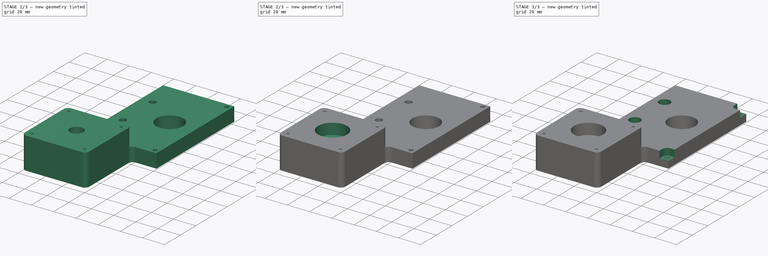
[diagram: build sequence overview — one tinted view per stage of 3, left to right]
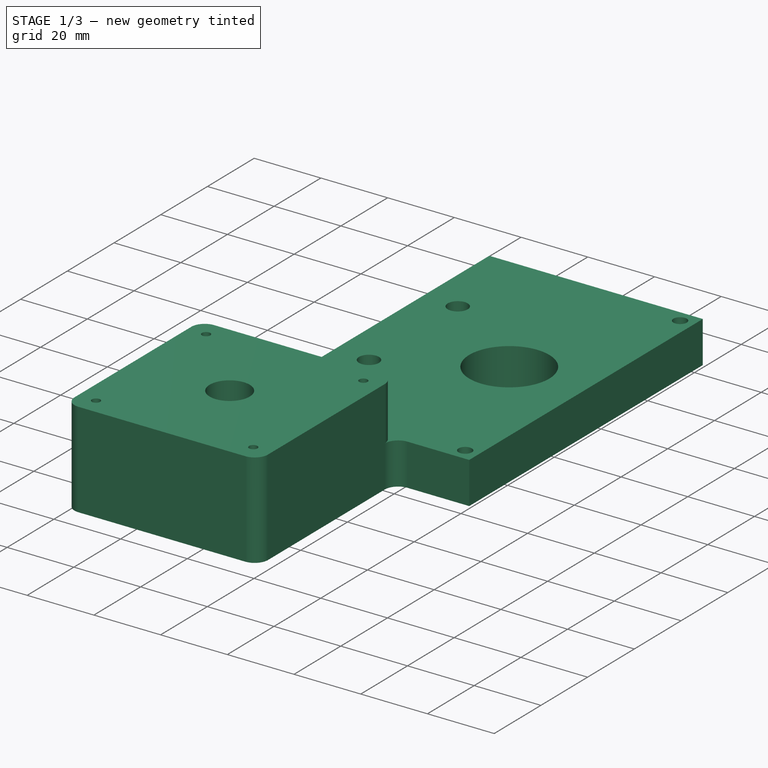
[diagram: stage 1 of 3 — iso view after this stage's code; geometry added in this stage tinted green]
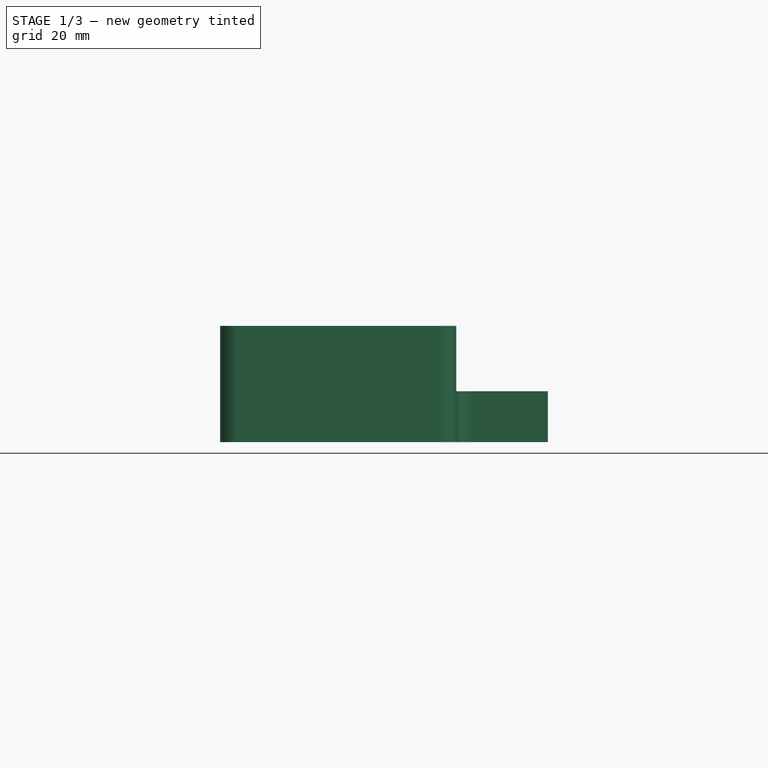
[diagram: stage 1 of 3 — front view after this stage's code; geometry added in this stage tinted green]
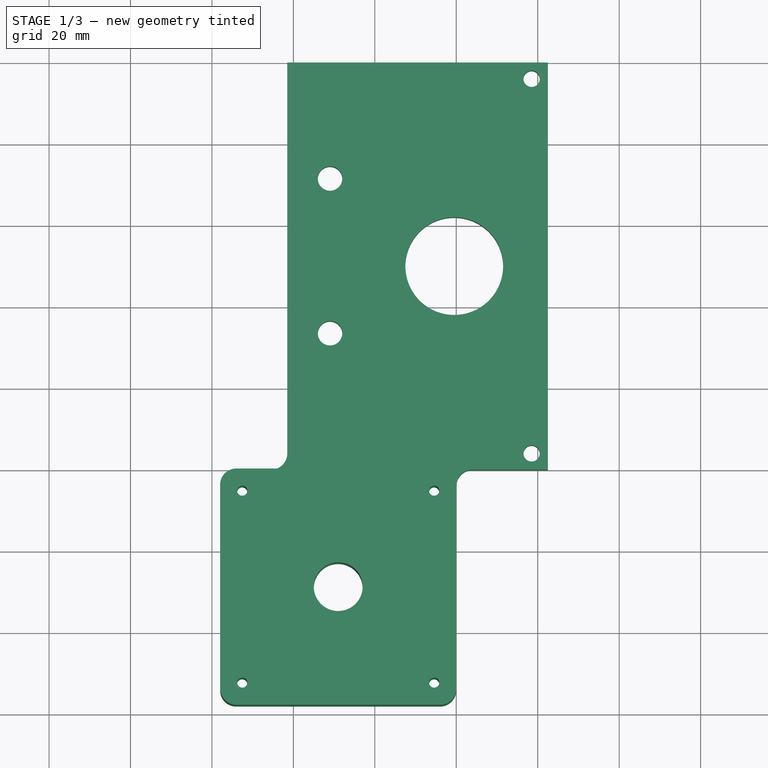
[diagram: stage 1 of 3 — top view after this stage's code; geometry added in this stage tinted green]
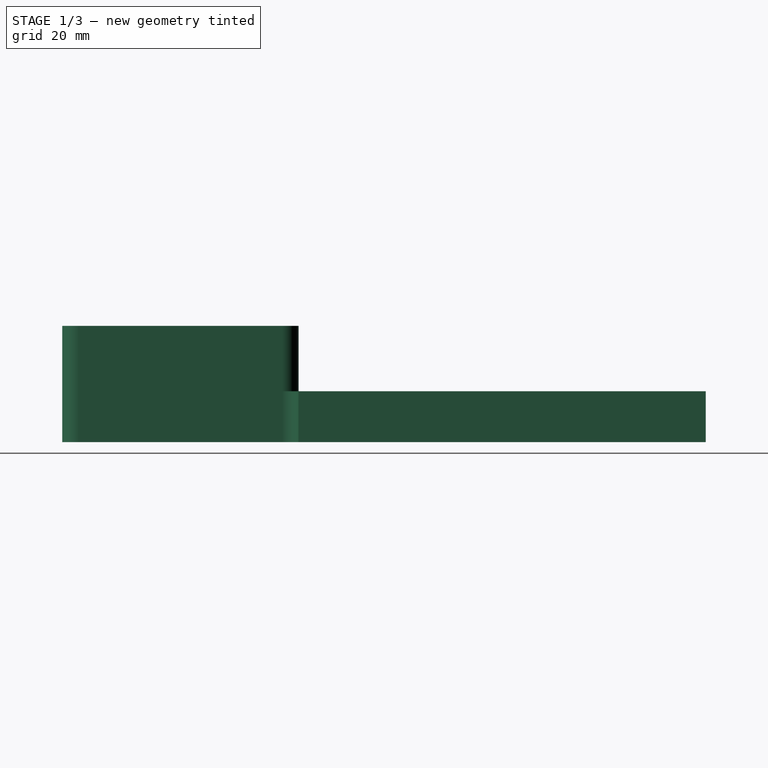
[diagram: stage 1 of 3 — right view after this stage's code; geometry added in this stage tinted green]
FCSTD DOCUMENT  (FreeCAD 0.16R6703 (Git))
Label: Z-Axis-SM-mount-alt
License: CreativeCommons Attribution-ShareAlike
LicenseURL: http://creativecommons.org/licenses/by-sa/4.0/
objects: Sketcher::SketchObject×6, PartDesign::Pocket×5, PartDesign::Pad×1
note: 18 computed .brp shape members not serialized (recipe doc carries the construction recipe); baked Part::Feature solids carry a one-line shape summary decoded from their .brp

FEATURE [Sketcher::SketchObject] Sketch002  label="Base outline"
  Placement = pos=(0,0,0) rot=(1,0,0;3.14159rad)
  sketch-geometry (25):
    g0: Circle CenterX=-29 CenterY=129 CenterZ=0 NormalX=0 NormalY=0 NormalZ=1 Radius=6
    g1: Circle CenterX=-31 CenterY=66.5 CenterZ=0 NormalX=0 NormalY=0 NormalZ=1 Radius=3
    g2: Circle CenterX=-31 CenterY=28.5 CenterZ=0 NormalX=0 NormalY=0 NormalZ=1 Radius=3
    g3: LineSegment [constr] StartX=-29 StartY=158 StartZ=0 EndX=-29 EndY=0 EndZ=0
    g4: Circle CenterX=-5.43 CenterY=152.57 CenterZ=0 NormalX=0 NormalY=0 NormalZ=1 Radius=1.25
    g5: Circle CenterX=-52.57 CenterY=152.57 CenterZ=0 NormalX=0 NormalY=0 NormalZ=1 Radius=1.25
    g6: Circle CenterX=-52.57 CenterY=105.43 CenterZ=0 NormalX=0 NormalY=0 NormalZ=1 Radius=1.25
    g7: Circle CenterX=-5.43 CenterY=105.43 CenterZ=0 NormalX=0 NormalY=0 NormalZ=1 Radius=1.25
    g8: LineSegment [constr] StartX=-58 StartY=129 StartZ=0 EndX=0 EndY=129 EndZ=0
    g9: LineSegment StartX=22.5 StartY=0 StartZ=0 EndX=-41.5 EndY=0 EndZ=0
    g10: LineSegment StartX=-41.5 StartY=0 StartZ=0 EndX=-41.5 EndY=96 EndZ=0
    g11: LineSegment StartX=22.5 StartY=100 StartZ=0 EndX=22.5 EndY=0 EndZ=0
    g12: ArcOfCircle CenterX=-54 CenterY=104 CenterZ=0 NormalX=0 NormalY=0 NormalZ=1 Radius=4 StartAngle=3.14159 EndAngle=4.71239
    g13: ArcOfCircle CenterX=-54 CenterY=154 CenterZ=0 NormalX=0 NormalY=0 NormalZ=1 Radius=4 StartAngle=1.5708 EndAngle=3.14159
    g14: LineSegment StartX=-58 StartY=154 StartZ=0 EndX=-58 EndY=104 EndZ=0
    g15: LineSegment StartX=-54 StartY=158 StartZ=0 EndX=-4 EndY=158 EndZ=0
    g16: ArcOfCircle CenterX=-4 CenterY=154 CenterZ=0 NormalX=0 NormalY=0 NormalZ=1 Radius=4 StartAngle=6.28319 EndAngle=7.85398
    g17: LineSegment StartX=0 StartY=154 StartZ=0 EndX=0 EndY=104 EndZ=0
    g18: ArcOfCircle CenterX=-45.5 CenterY=96 CenterZ=0 NormalX=0 NormalY=0 NormalZ=1 Radius=4 StartAngle=3.7332e-08 EndAngle=1.5708
    g19: LineSegment StartX=-54 StartY=100 StartZ=0 EndX=-45.5 EndY=100 EndZ=0
    g20: LineSegment StartX=22.5 StartY=100 StartZ=0 EndX=4 EndY=100 EndZ=0
    g21: ArcOfCircle CenterX=4 CenterY=104 CenterZ=0 NormalX=0 NormalY=0 NormalZ=1 Radius=4 StartAngle=3.14159 EndAngle=4.71239
    g22: Circle CenterX=18.5 CenterY=96 CenterZ=0 NormalX=0 NormalY=0 NormalZ=1 Radius=2
    g23: Circle CenterX=18.5 CenterY=4 CenterZ=0 NormalX=0 NormalY=0 NormalZ=1 Radius=2
    g24: Circle CenterX=-0.5 CenterY=50 CenterZ=0 NormalX=0 NormalY=0 NormalZ=1 Radius=12
  constraints (78):
    c: DistanceY(g-1,g0) = 129
    c: Radius(g0) = 6
    c: Vertical(g3)
    c: PointOnObject(g3,g-1)
    c: DistanceY(g3) = -158
    c: DistanceX(g-1,g3) = -29
    c: PointOnObject(g0,g3)
    c: Equal(g1,g2)
    c: Radius(g1) = 3
    c: DistanceY(g2,g1) = 38
    c: DistanceY(g2) = 28.5
    c: Symmetric(g4,g5,g3)
    c: Symmetric(g7,g6,g3)
    c: Equal(g4,g5)
    c: Equal(g5,g6)
    c: Equal(g6,g7)
    c: Radius(g5) = 1.25
    c: PointOnObject(g8,g-2)
    c: PointOnObject(g0,g8)
    c: DistanceX(g8) = 58
    c: Symmetric(g5,g6,g8)
    c: DistanceX(g6,g7) = 47.14
    c: DistanceY(g7,g4) = 47.14
    c: Coincident(g9,g10)
    c: Coincident(g9,g11)
    c: Vertical(g11)
    c: Vertical(g10)
    c: Horizontal(g9)
    c: Vertical(g14)
    c: Coincident(g14,g13)
    c: Tangent(g14,g13)
    c: Coincident(g12,g14)
    c: Tangent(g12,g14)
    c: Coincident(g13,g15)
    c: Tangent(g13,g15)
    c: Equal(g12,g13)
    c: Radius(g12) = 4
    c: Coincident(g15,g16)
    c: Tangent(g15,g16)
    c: Vertical(g17)
    c: Coincident(g17,g16)
    c: Tangent(g16,g17)
    c: PointOnObject(g8,g17)
    c: PointOnObject(g3,g15)
    c: Equal(g13,g16)
    c: PointOnObject(g8,g14)
    c: Symmetric(g12,g13,g8)
    c: Coincident(g10,g18)
    c: Tangent(g18,g10)
    c: Horizontal(g19)
    c: Coincident(g19,g18)
    c: Coincident(g19,g12)
    c: Tangent(g19,g18)
    c: Tangent(g12,g19)
    c: Equal(g12,g18)
    c: Horizontal(g20)
    c: DistanceX(g9,g3) = 12.5
    c: DistanceX(g9,g9) = 64
    c: Horizontal(g15)
    c: Coincident(g21,g17)
    c: Coincident(g21,g20)
    c: Tangent(g21,g20)
    c: Tangent(g21,g17)
    c: Equal(g14,g17)
    c: PointOnObject(g9,g-1)
    c: Radius(g21) = 4
    c: Coincident(g20,g11)
    c: Equal(g22,g23)
    c: DistanceY(g22,g11) = 4
    c: DistanceY(g9,g23) = 4
    c: Radius(g22) = 2
    c: DistanceX(g23,g9) = 4
    c: DistanceX(g22,g11) = 4
    c: DistanceX(g24,g9) = 23
    c: DistanceY(g-1,g24) = 50
    c: Radius(g24) = 12
    c: DistanceX(g10,g1) = 10.5
    c: DistanceX(g10,g2) = 10.5
FEATURE [PartDesign::Pad] Pad
  Length = 28.575
  Length2 = 100
  Placement = pos=(0,0,0) rot=(1,0,0;3.14159rad)
  Sketch = -> Sketch002
  Type = 0
FEATURE [Sketcher::SketchObject] Sketch004  label="Sketch001"
  Support = -> Pad [Face24]
  sketch-geometry (6):
    g0: LineSegment StartX=-45 StartY=0 StartZ=0 EndX=24 EndY=0 EndZ=0
    g1: LineSegment StartX=24 StartY=0 StartZ=0 EndX=24 EndY=-104 EndZ=0
    g2: LineSegment StartX=24 StartY=-104 StartZ=0 EndX=-5.1e-11 EndY=-104 EndZ=0
    g3: LineSegment StartX=-3.99998 StartY=-100 StartZ=0 EndX=-45 EndY=-100 EndZ=0
    g4: LineSegment StartX=-45 StartY=-100 StartZ=0 EndX=-45 EndY=0 EndZ=0
    g5: ArcOfCircle CenterX=-4 CenterY=-104 CenterZ=0 NormalX=0 NormalY=0 NormalZ=1 Radius=4 StartAngle=6.28318 EndAngle=7.85398
  constraints (19):
    c: Coincident(g0,g1)
    c: Coincident(g1,g2)
    c: Coincident(g3,g4)
    c: Coincident(g0,g4)
    c: Horizontal(g0)
    c: Vertical(g4)
    c: Vertical(g1)
    c: Horizontal(g2)
    c: Horizontal(g3)
    c: DistanceY(g3,g-1) = 100
    c: DistanceX(g0,g-1) = 45
    c: DistanceX(g-1,g0) = 24
    c: PointOnObject(g0,g-1)
    c: Coincident(g3,g5)
    c: Radius(g5) = 4
    c: Tangent(g3,g5)
    c: Coincident(g2,g5)
    c: PointOnObject(g2,g-2)
    c: Angle(g5) = 1.5708
FEATURE [PartDesign::Pocket] Pocket
  Length = 16.075
  Placement = pos=(0,0,0) rot=(1,0,0;3.14159rad)
  Sketch = -> Sketch004
  Type = 0
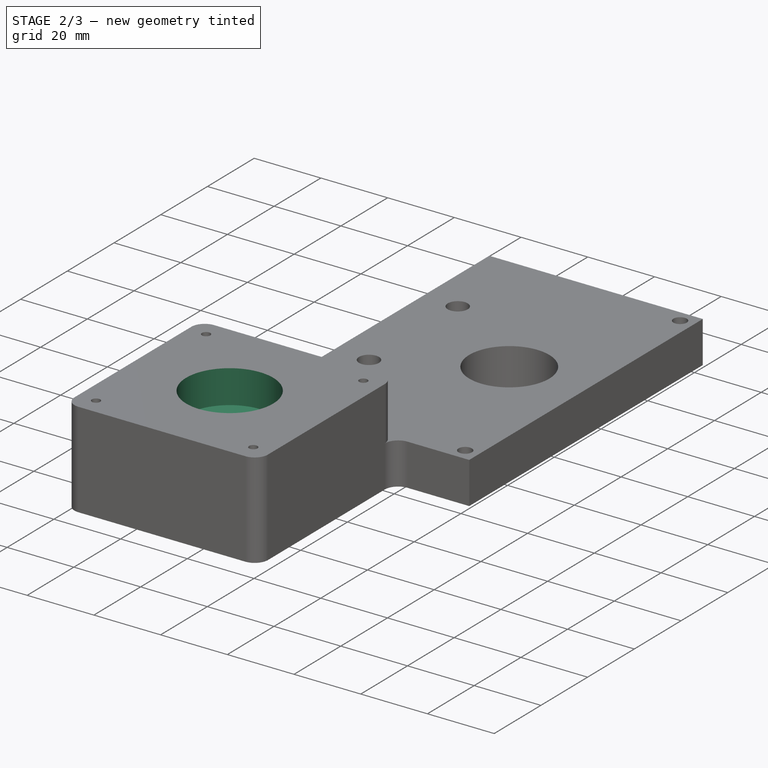
[diagram: stage 2 of 3 — iso view after this stage's code; geometry added in this stage tinted green]
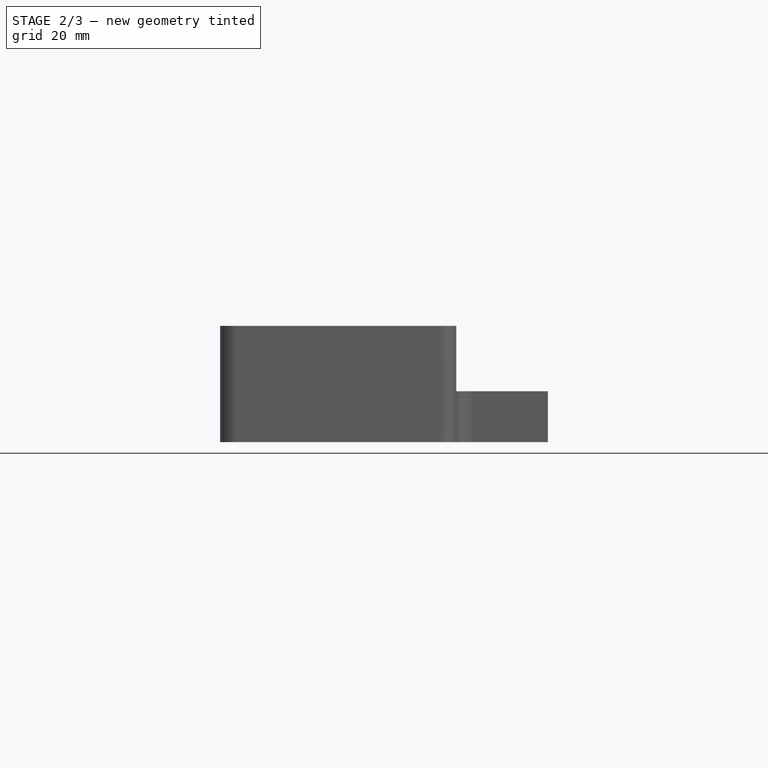
[diagram: stage 2 of 3 — front view after this stage's code; geometry added in this stage tinted green]
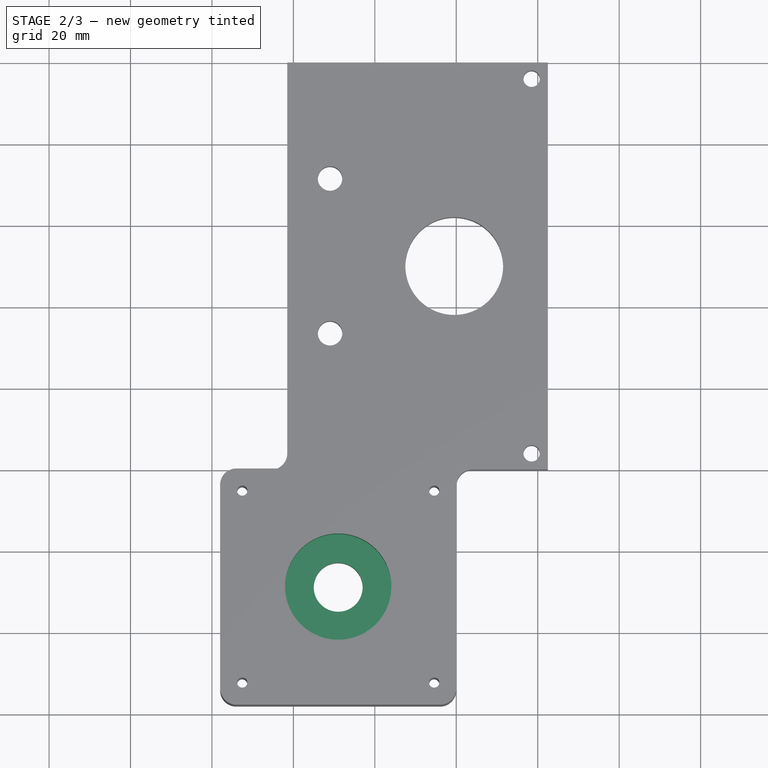
[diagram: stage 2 of 3 — top view after this stage's code; geometry added in this stage tinted green]
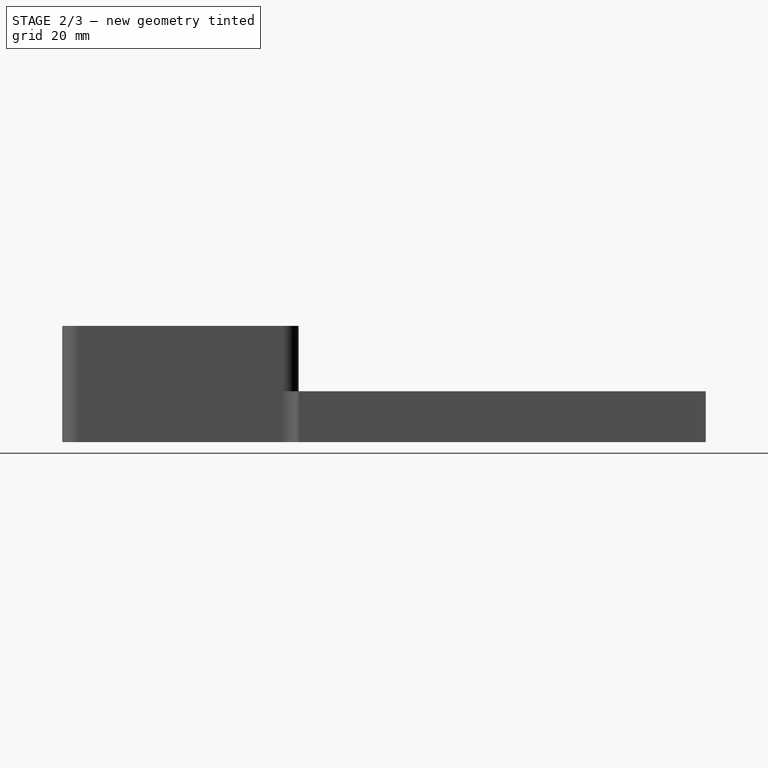
[diagram: stage 2 of 3 — right view after this stage's code; geometry added in this stage tinted green]
FEATURE [Sketcher::SketchObject] Sketch  label="Sketch002"
  Placement = pos=(0,0,-28.575) rot=(1,0,0;3.14159rad)
  Support = -> Pocket [Face4]
  sketch-geometry (1):
    g0: Circle CenterX=-29 CenterY=129 CenterZ=0 NormalX=0 NormalY=0 NormalZ=1 Radius=13.05
  constraints (3):
    c: Radius(g0) = 13.05
    c: DistanceY(g-1,g0) = 129
    c: DistanceX(g-1,g0) = -29
FEATURE [PartDesign::Pocket] Pocket001
  Length = 10
  Placement = pos=(0,0,0) rot=(1,0,0;3.14159rad)
  Sketch = -> Sketch
  Type = 0
FEATURE [Sketcher::SketchObject] Sketch005  label="Sketch003"
  Support = -> Pocket001 [Face29]
  sketch-geometry (1):
    g0: Circle CenterX=-29 CenterY=-129 CenterZ=0 NormalX=0 NormalY=0 NormalZ=1 Radius=13.05
  constraints (3):
    c: Radius(g0) = 13.05
    c: DistanceY(g0,g-1) = 129
    c: DistanceX(g0,g-1) = 29
FEATURE [PartDesign::Pocket] Pocket002
  Length = 10
  Placement = pos=(0,0,0) rot=(1,0,0;3.14159rad)
  Sketch = -> Sketch005
  Type = 0
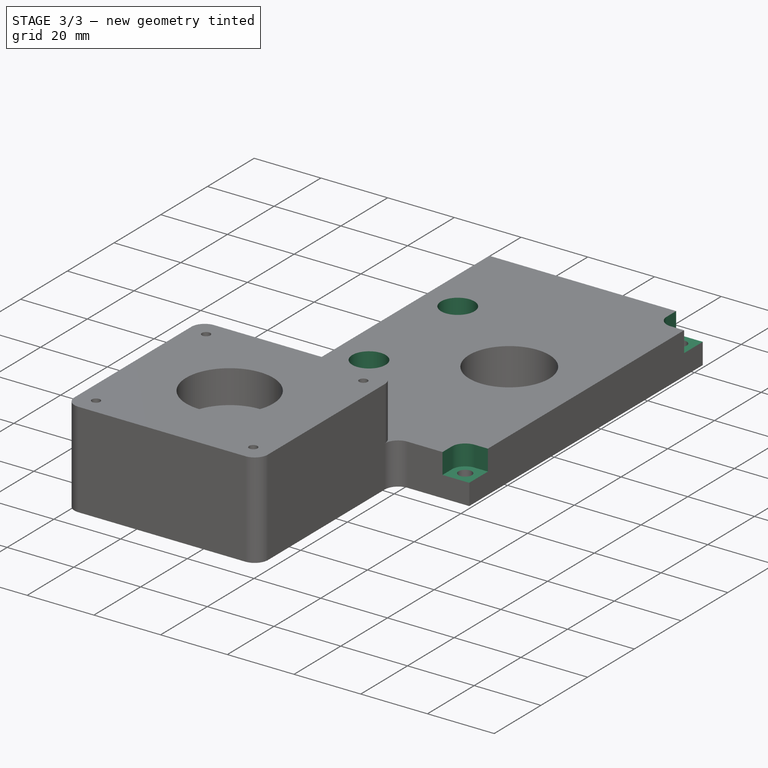
[diagram: stage 3 of 3 — iso view after this stage's code; geometry added in this stage tinted green]
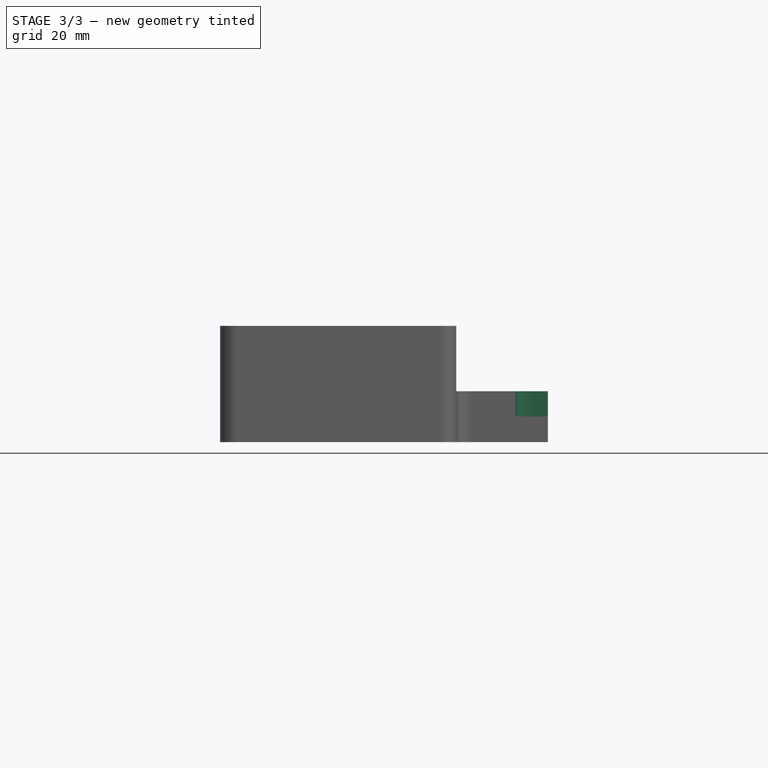
[diagram: stage 3 of 3 — front view after this stage's code; geometry added in this stage tinted green]
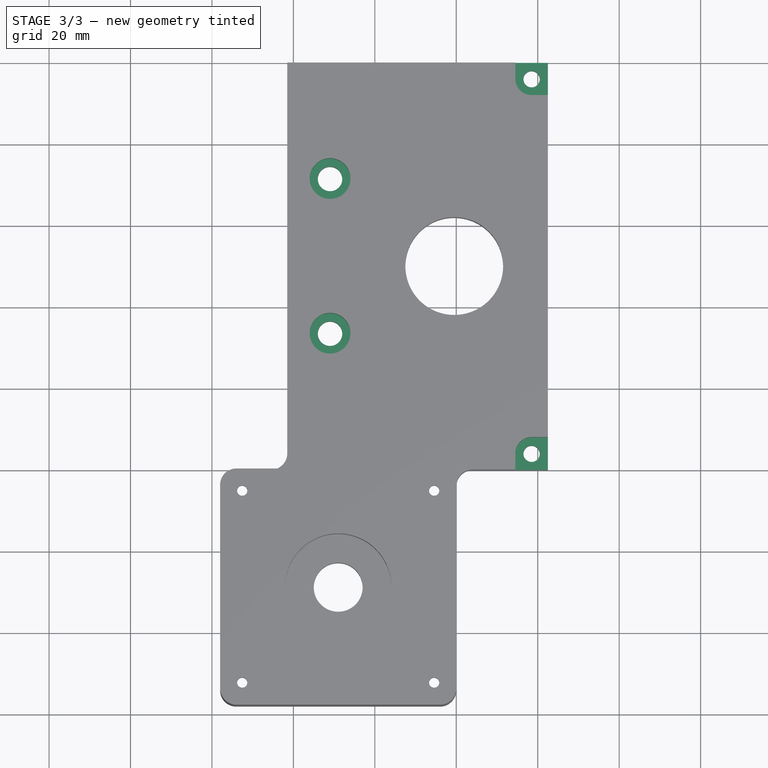
[diagram: stage 3 of 3 — top view after this stage's code; geometry added in this stage tinted green]
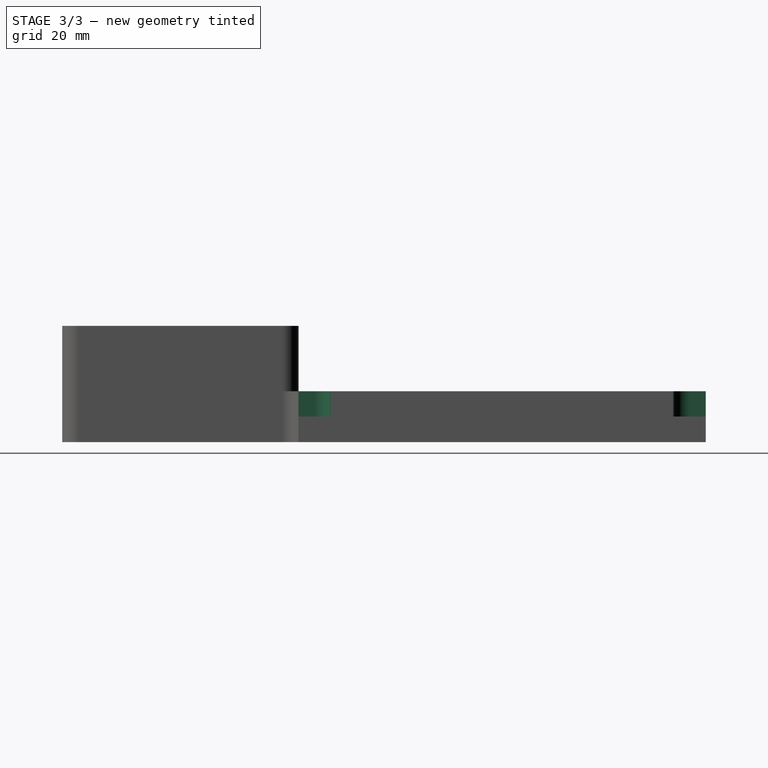
[diagram: stage 3 of 3 — right view after this stage's code; geometry added in this stage tinted green]
FEATURE [Sketcher::SketchObject] Sketch006  label="Sketch004"
  Placement = pos=(0,0,-28.575) rot=(1,0,0;3.14159rad)
  Support = -> Pocket002 [Face4]
  sketch-geometry (4):
    g0: Circle CenterX=-52.57 CenterY=152.57 CenterZ=0 NormalX=0 NormalY=0 NormalZ=1 Radius=3
    g1: Circle CenterX=-5.43 CenterY=152.57 CenterZ=0 NormalX=0 NormalY=0 NormalZ=1 Radius=3
    g2: Circle CenterX=-52.57 CenterY=105.43 CenterZ=0 NormalX=0 NormalY=0 NormalZ=1 Radius=3
    g3: Circle CenterX=-5.43 CenterY=105.43 CenterZ=0 NormalX=0 NormalY=0 NormalZ=1 Radius=3
  constraints (12):
    c: DistanceX(g0,g1) = 47.14
    c: DistanceY(g2,g0) = 47.14
    c: DistanceY(g3,g1) = 47.14
    c: DistanceX(g2,g3) = 47.14
    c: DistanceY(g-1,g3) = 105.43
    c: DistanceY(g-1,g2) = 105.43
    c: DistanceX(g3,g-1) = 5.43
    c: DistanceX(g1,g-1) = 5.43
    c: Equal(g1,g0)
    c: Equal(g0,g2)
    c: Equal(g2,g3)
    c: Radius(g1) = 3
FEATURE [PartDesign::Pocket] Pocket003
  Length = 23
  Placement = pos=(0,0,0) rot=(1,0,0;3.14159rad)
  Sketch = -> Sketch006
  Type = 0
FEATURE [Sketcher::SketchObject] Sketch007  label="Sketch005"
  Placement = pos=(0,0,-16.075) rot=(0,0,1;0rad)
  Support = -> Pocket003 [Face2]
  sketch-geometry (12):
    g0: Circle CenterX=-31 CenterY=-28.5 CenterZ=0 NormalX=0 NormalY=0 NormalZ=1 Radius=5
    g1: Circle CenterX=-31 CenterY=-66.5 CenterZ=0 NormalX=0 NormalY=0 NormalZ=1 Radius=5
    g2: LineSegment StartX=14.5 StartY=0 StartZ=0 EndX=22.5 EndY=0 EndZ=0
    g3: LineSegment StartX=22.5 StartY=0 StartZ=0 EndX=22.5 EndY=-8 EndZ=0
    g4: LineSegment StartX=22.5 StartY=-92.01 StartZ=0 EndX=22.5 EndY=-100.01 EndZ=0
    g5: LineSegment StartX=22.5 StartY=-100.01 StartZ=0 EndX=14.5 EndY=-100.01 EndZ=0
    g6: ArcOfCircle CenterX=18.5 CenterY=-4 CenterZ=0 NormalX=0 NormalY=0 NormalZ=1 Radius=4 StartAngle=3.14159 EndAngle=4.71239
    g7: LineSegment StartX=14.5 StartY=0 StartZ=0 EndX=14.5 EndY=-4 EndZ=0
    g8: LineSegment StartX=18.5 StartY=-8 StartZ=0 EndX=22.5 EndY=-8 EndZ=0
    g9: ArcOfCircle CenterX=18.5 CenterY=-96.01 CenterZ=0 NormalX=0 NormalY=0 NormalZ=1 Radius=4 StartAngle=1.5708 EndAngle=3.14159
    g10: LineSegment StartX=18.5 StartY=-92.01 StartZ=0 EndX=22.5 EndY=-92.01 EndZ=0
    g11: LineSegment StartX=14.5 StartY=-96.01 StartZ=0 EndX=14.5 EndY=-100.01 EndZ=0
  constraints (38):
    c: Horizontal(g2)
    c: Coincident(g2,g3)
    c: Vertical(g3)
    c: Vertical(g4)
    c: Coincident(g4,g5)
    c: Horizontal(g5)
    c: Equal(g3,g2)
    c: Equal(g2,g4)
    c: Equal(g4,g5)
    c: Equal(g1,g0)
    c: PointOnObject(g2,g-1)
    c: DistanceY(g3,g3) = 8
    c: Horizontal(g8)
    c: Vertical(g7)
    c: Coincident(g7,g2)
    c: Coincident(g6,g8)
    c: Coincident(g6,g7)
    c: Coincident(g3,g8)
    c: Tangent(g7,g6)
    c: Tangent(g6,g8)
    c: DistanceX(g-1,g2) = 22.5
    c: DistanceX(g6,g2) = 4
    c: Horizontal(g10)
    c: Vertical(g11)
    c: Coincident(g9,g10)
    c: Coincident(g4,g10)
    c: Coincident(g5,g11)
    c: Coincident(g9,g11)
    c: DistanceX(g9,g4) = 4
    c: DistanceX(g-1,g4) = 22.5
    c: DistanceY(g4,g-1) = 100.01
    c: Tangent(g9,g10)
    c: Tangent(g11,g9)
    c: Radius(g0) = 5
    c: DistanceX(g0,g-1) = 31
    c: DistanceY(g0,g-1) = 28.5
    c: DistanceY(g1,g0) = 38
    c: DistanceX(g1,g-1) = 31
FEATURE [PartDesign::Pocket] Pocket004
  Length = 6.2
  Placement = pos=(0,0,0) rot=(1,0,0;3.14159rad)
  Sketch = -> Sketch007
  Type = 0
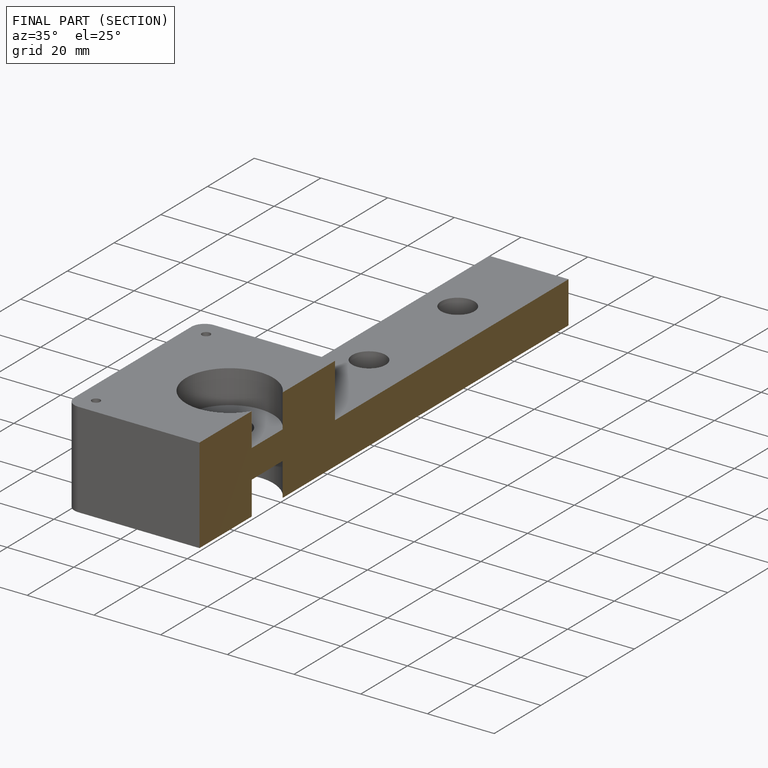
[diagram: finished part — half-section view (interior)]
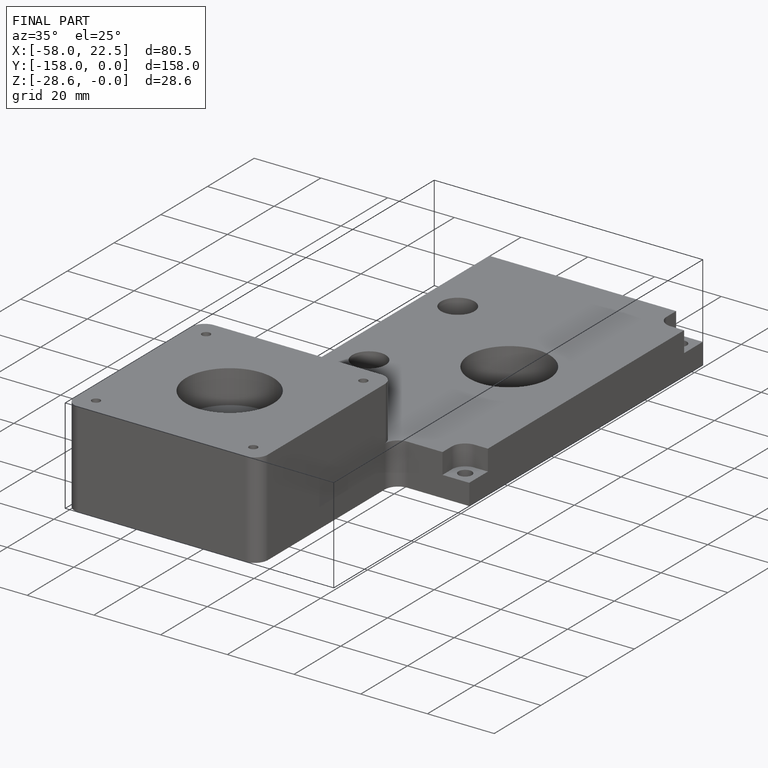
[diagram: finished part — iso view with bounding-box wireframe]
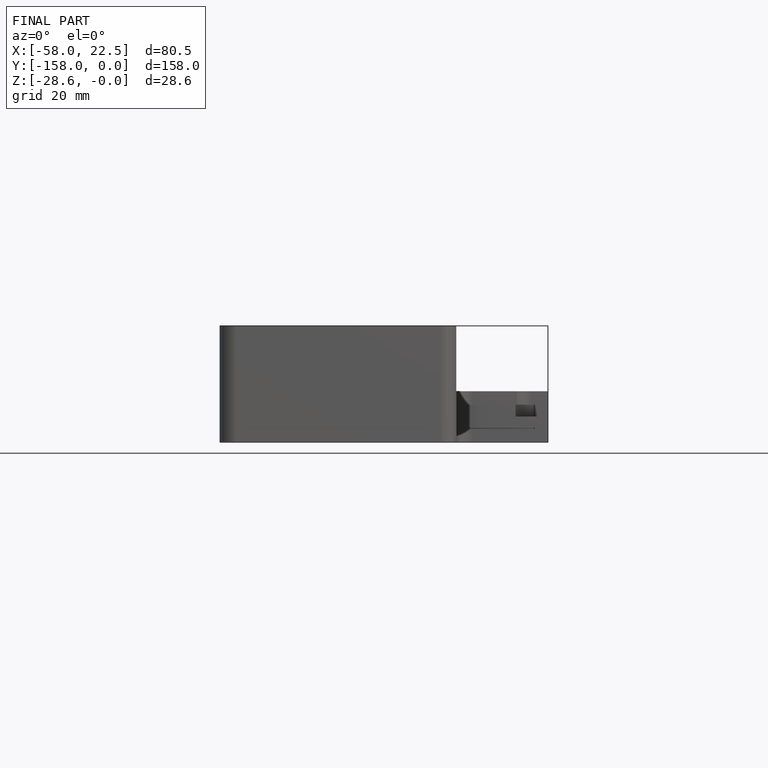
[diagram: finished part — front view with bounding-box wireframe]
